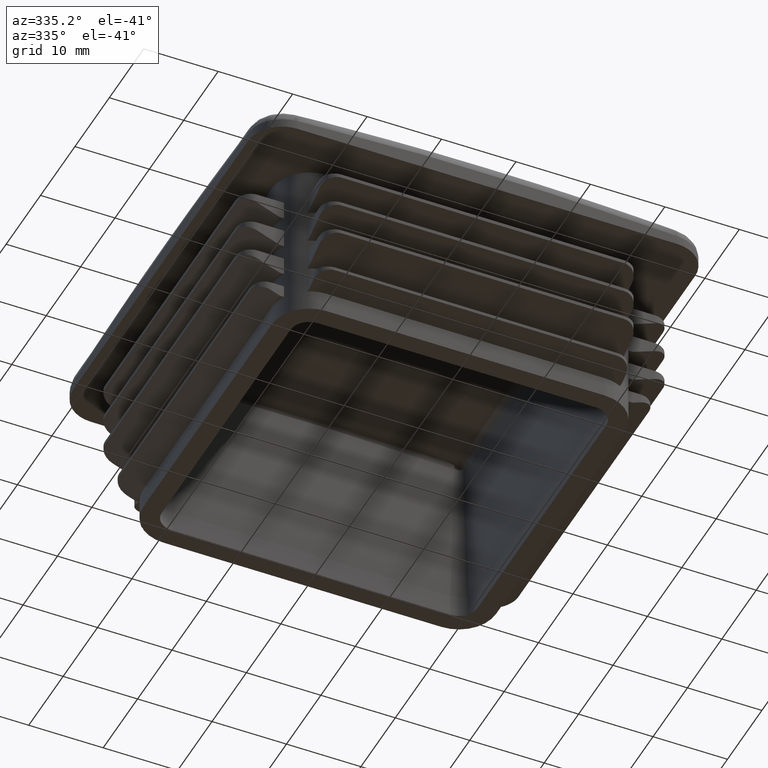
[diagram: clean part render]
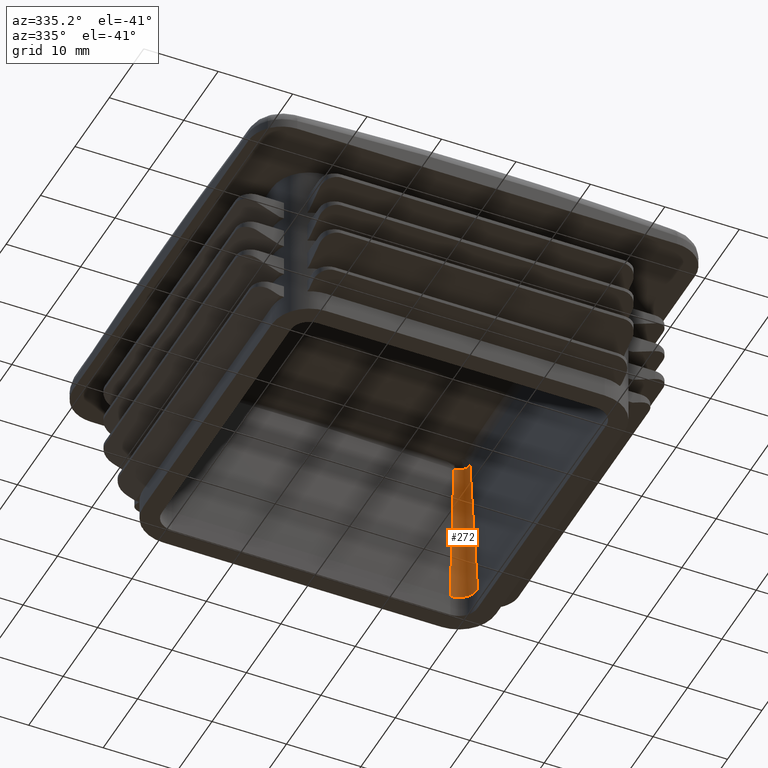
[diagram: same view with one face highlighted and labeled with its STEP entity id]
A machine part, auxiliary view. The second image highlights one B-rep face of the part: STEP entity #272.
In plain terms, the highlighted conical surface has half-angle 3 deg.
Its self-contained STEP definition (entity closure, byte-faithful):
#272 = ADVANCED_FACE( '', ( #770 ), #771, .F. );
#770 = FACE_OUTER_BOUND( '', #3470, .T. );
#771 = CONICAL_SURFACE( '', #3471, 2.49999999999999, 0.0523598775598299 );
#3470 = EDGE_LOOP( '', ( #5277, #5278, #5279, #5280 ) );
#3471 = AXIS2_PLACEMENT_3D( '', #5281, #5282, #5283 );
#5277 = ORIENTED_EDGE( '', *, *, #6543, .F. );
#5278 = ORIENTED_EDGE( '', *, *, #6157, .T. );
#5279 = ORIENTED_EDGE( '', *, *, #6304, .T. );
#5280 = ORIENTED_EDGE( '', *, *, #6311, .F. );
#5281 = CARTESIAN_POINT( '', ( 18.7000000000000, 18.7000000000000, 3.00000000000000 ) );
#5282 = DIRECTION( '', ( 0.000000000000000, 0.000000000000000, -1.00000000000000 ) );
#5283 = DIRECTION( '', ( 1.00000000000000, 0.000000000000000, 0.000000000000000 ) );
#6157 = EDGE_CURVE( '', #7065, #7055, #7066, .T. );
#6304 = EDGE_CURVE( '', #7055, #7309, #7310, .T. );
#6311 = EDGE_CURVE( '', #7316, #7309, #7318, .T. );
#6543 = EDGE_CURVE( '', #7065, #7316, #7689, .T. );
#7055 = VERTEX_POINT( '', #10064 );
#7065 = VERTEX_POINT( '', #10128 );
#7066 = B_SPLINE_CURVE_WITH_KNOTS( '', 3, ( #10129, #10130, #10131, #10132, #10133, #10134, #10135, #10136, #10137, #10138, #10139, #10140, #10141, #10142, #10143, #10144, #10145, #10146, #10147, #10148, #10149, #10150, #10151, #10152, #10153, #10154, #10155, #10156, #10157, #10158, #10159, #10160, #10161, #10162, #10163, #10164, #10165, #10166, #10167, #10168, #10169 ), .UNSPECIFIED., .F., .F., ( 4, 1, 1, 2, 2, 2, 2, 1, 2, 1, 2, 2, 1, 1, 2, 2, 2, 2, 1, 2, 2, 2, 1, 1, 4 ), ( 0.000000000000000, 0.000143389601598742, 0.000286779203197483, 0.000430168804796225, 0.000466016205195904, 0.000501863605595584, 0.000573558406394937, 0.000716948007993642, 0.000860337609592347, 0.000932032410391700, 0.000967879810791373, 0.00100372721119105, 0.00114711681278972, 0.00129050641438839, 0.00143389601598707, 0.00146974341638674, 0.00150559081678640, 0.00157728561758574, 0.00172067521918441, 0.00186406482078309, 0.00193575962158243, 0.00197160702198210, 0.00200745442238177, 0.00215084402398045, 0.00229423362557913 ), .UNSPECIFIED. );
#7309 = VERTEX_POINT( '', #10827 );
#7310 = LINE( '', #10828, #10829 );
#7316 = VERTEX_POINT( '', #10839 );
#7318 = CIRCLE( '', #10842, 2.50000000000000 );
#7689 = LINE( '', #11384, #11385 );
#10064 = CARTESIAN_POINT( '', ( 18.7000000000000, 20.1682000427587, 22.6879160185136 ) );
#10128 = CARTESIAN_POINT( '', ( 20.1682000427587, 18.7000000000000, 22.6879160185137 ) );
#10129 = CARTESIAN_POINT( '', ( 20.1682000427587, 18.7000000000000, 22.6879160185137 ) );
#10130 = CARTESIAN_POINT( '', ( 20.1682376720329, 18.7484752647265, 22.6871980091893 ) );
#10131 = CARTESIAN_POINT( '', ( 20.1635200211346, 18.8446168779853, 22.6858446422231 ) );
#10132 = CARTESIAN_POINT( '', ( 20.1425595003298, 18.9864860415395, 22.6840542363015 ) );
#10133 = CARTESIAN_POINT( '', ( 20.1193857944480, 19.0795127667767, 22.6830195690206 ) );
#10134 = CARTESIAN_POINT( '', ( 20.1019609641284, 19.1371580641859, 22.6824237557693 ) );
#10135 = CARTESIAN_POINT( '', ( 20.0983285947625, 19.1486622459756, 22.6823071416779 ) );
#10136 = CARTESIAN_POINT( '', ( 20.0907659879277, 19.1716203374844, 22.6820790645197 ) );
#10137 = CARTESIAN_POINT( '', ( 20.0868299897509, 19.1830900487604, 22.6819674526916 ) );
#10138 = CARTESIAN_POINT( '', ( 20.0746179853360, 19.2172896017296, 22.6816416988955 ) );
#10139 = CARTESIAN_POINT( '', ( 20.0659453087785, 19.2397964767225, 22.6814367282750 ) );
#10140 = CARTESIAN_POINT( '', ( 20.0383652360230, 19.3064562440762, 22.6808576884241 ) );
#10141 = CARTESIAN_POINT( '', ( 19.9974338488815, 19.3930444421511, 22.6801811227540 ) );
#10142 = CARTESIAN_POINT( '', ( 19.9483376243732, 19.4751329170136, 22.6796921555778 ) );
#10143 = CARTESIAN_POINT( '', ( 19.9084215117187, 19.5349941698241, 22.6793965441797 ) );
#10144 = CARTESIAN_POINT( '', ( 19.8876886003276, 19.5644977659273, 22.6792665482962 ) );
#10145 = CARTESIAN_POINT( '', ( 19.8657744292206, 19.5933503581223, 22.6791637069149 ) );
#10146 = CARTESIAN_POINT( '', ( 19.8508994117424, 19.6124390612946, 22.6791012511539 ) );
#10147 = CARTESIAN_POINT( '', ( 19.8433245783951, 19.6219151437826, 22.6790730703657 ) );
#10148 = CARTESIAN_POINT( '', ( 19.8049946549802, 19.6686679832796, 22.6789482231227 ) );
#10149 = CARTESIAN_POINT( '', ( 19.7404448751348, 19.7398774044840, 22.6788495080297 ) );
#10150 = CARTESIAN_POINT( '', ( 19.6342463382213, 19.8362318165211, 22.6789954262960 ) );
#10151 = CARTESIAN_POINT( '', ( 19.5572097567741, 19.8935079865586, 22.6792883183438 ) );
#10152 = CARTESIAN_POINT( '', ( 19.5070590924750, 19.9270707909628, 22.6795341711515 ) );
#10153 = CARTESIAN_POINT( '', ( 19.4969285847687, 19.9336713497494, 22.6795864888020 ) );
#10154 = CARTESIAN_POINT( '', ( 19.4764645056483, 19.9466458810690, 22.6796974903488 ) );
#10155 = CARTESIAN_POINT( '', ( 19.4661586520605, 19.9530020231152, 22.6797560277039 ) );
#10156 = CARTESIAN_POINT( '', ( 19.4350882956061, 19.9716397135048, 22.6799402851225 ) );
#10157 = CARTESIAN_POINT( '', ( 19.4141430731024, 19.9835086206347, 22.6800747962419 ) );
#10158 = CARTESIAN_POINT( '', ( 19.3506248309250, 20.0174764083174, 22.6805127171064 ) );
#10159 = CARTESIAN_POINT( '', ( 19.2641168618218, 20.0584040325402, 22.6811881499900 ) );
#10160 = CARTESIAN_POINT( '', ( 19.1740253757178, 20.0907272566957, 22.6820440256357 ) );
#10161 = CARTESIAN_POINT( '', ( 19.1050928730838, 20.1116948374760, 22.6827545657765 ) );
#10162 = CARTESIAN_POINT( '', ( 19.0818876539659, 20.1181372558492, 22.6830028716240 ) );
#10163 = CARTESIAN_POINT( '', ( 19.0467318990610, 20.1269654764114, 22.6833928324638 ) );
#10164 = CARTESIAN_POINT( '', ( 19.0349428672004, 20.1297716567504, 22.6835258813304 ) );
#10165 = CARTESIAN_POINT( '', ( 19.0113097780701, 20.1350882141638, 22.6837971659160 ) );
#10166 = CARTESIAN_POINT( '', ( 18.9521419776611, 20.1476287808508, 22.6844877347515 ) );
#10167 = CARTESIAN_POINT( '', ( 18.8448827227199, 20.1635192354220, 22.6858407188752 ) );
#10168 = CARTESIAN_POINT( '', ( 18.7484753024687, 20.1682376720622, 22.6871980086302 ) );
#10169 = CARTESIAN_POINT( '', ( 18.7000000000000, 20.1682000427587, 22.6879160185137 ) );
#10827 = CARTESIAN_POINT( '', ( 18.7000000000000, 21.2000000000000, 3.00000000000000 ) );
#10828 = CARTESIAN_POINT( '', ( 18.7000000000000, 21.2000000000000, 3.00000000000000 ) );
#10829 = VECTOR( '', #12127, 1000.00000000000 );
#10839 = CARTESIAN_POINT( '', ( 21.2000000000000, 18.7000000000000, 3.00000000000000 ) );
#10842 = AXIS2_PLACEMENT_3D( '', #12136, #12137, #12138 );
#11384 = CARTESIAN_POINT( '', ( 21.2000000000000, 18.7000000000000, 3.00000000000000 ) );
#11385 = VECTOR( '', #12490, 1000.00000000000 );
#12127 = DIRECTION( '', ( 0.000000000000000, 0.0523359562429438, -0.998629534754574 ) );
#12136 = CARTESIAN_POINT( '', ( 18.7000000000000, 18.7000000000000, 3.00000000000000 ) );
#12137 = DIRECTION( '', ( 0.000000000000000, 0.000000000000000, 1.00000000000000 ) );
#12138 = DIRECTION( '', ( 1.00000000000000, 0.000000000000000, 0.000000000000000 ) );
#12490 = DIRECTION( '', ( 0.0523359562429438, -1.45261459091728E-016, -0.998629534754574 ) );